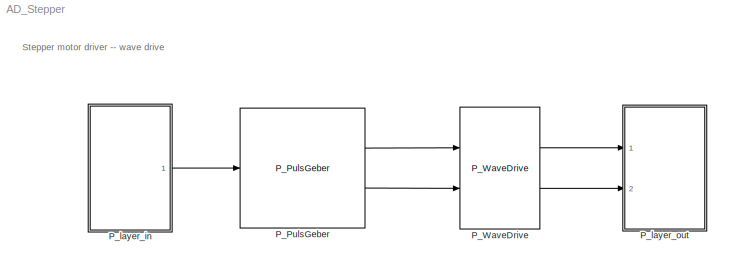
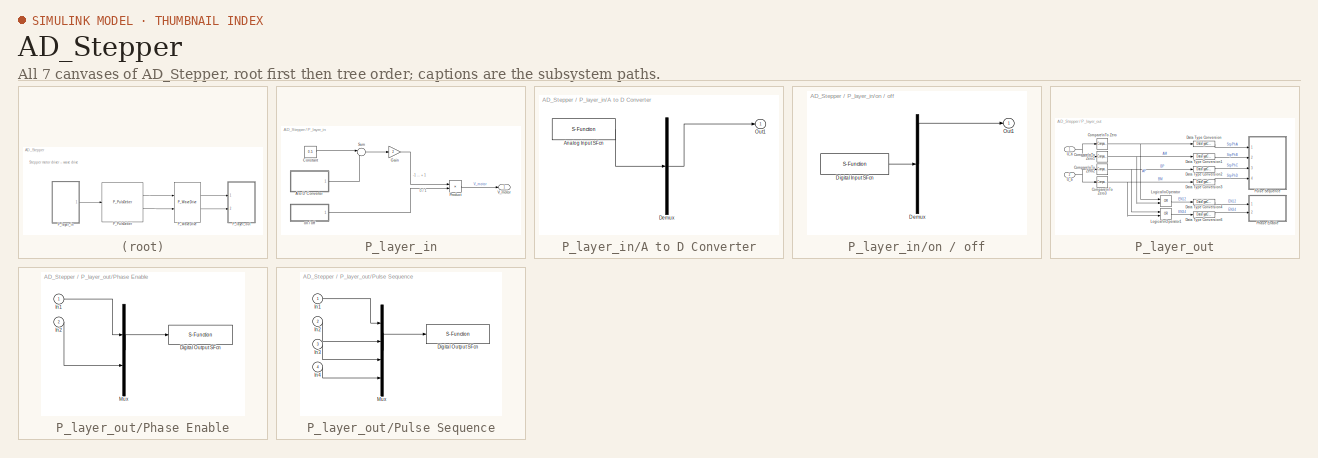
[diagram: thumbnail index - all 7 canvases of the model, root first then tree order]
MODEL AD_Stepper
KIND model
CONFIG PostLoadFcn = Ts = 0.01;      % model sample time\nTmax = 0.5;   % maximum time per \"tick\"
BLOCK [Reference] P_PulsGeber  REF=AD_Stepper_motor_lib/P_PulsGeber
  FunctionWithSeparateData = off
  Ports = [1, 2]
  RTWMemSecDataConstants = Inherit from model
  RTWMemSecDataInternal = Inherit from model
  RTWMemSecDataParameters = Inherit from model
  RTWMemSecFuncExecute = Inherit from model
  RTWMemSecFuncInitTerm = Inherit from model
  SID = 206
  ShowPortLabels = FromPortIcon
  SourceBlock = AD_Stepper_motor_lib/P_PulsGeber
  SourceType = SubSystem
  SystemSampleTime = Ts
BLOCK [Reference] P_WaveDrive  REF=AD_Stepper_motor_lib/P_WaveDrive
  FunctionWithSeparateData = off
  Ports = [2, 2]
  RTWMemSecDataConstants = Inherit from model
  RTWMemSecDataInternal = Inherit from model
  RTWMemSecDataParameters = Inherit from model
  RTWMemSecFuncExecute = Inherit from model
  RTWMemSecFuncInitTerm = Inherit from model
  SID = 205
  ShowPortLabels = FromPortIcon
  SourceBlock = AD_Stepper_motor_lib/P_WaveDrive
  SourceType = SubSystem
  SystemSampleTime = Ts
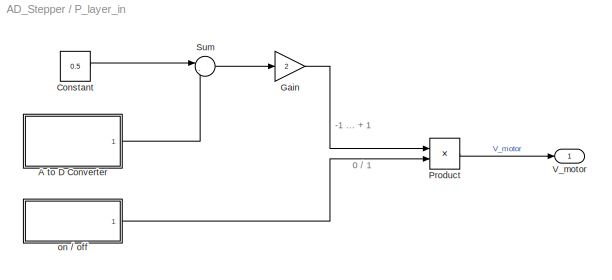
BLOCK [SubSystem] P_layer_in
  Ports = [0, 1]
  RequestExecContextInheritance = off
  SID = 58
  TreatAsAtomicUnit = on
BLOCK [SubSystem] P_layer_in/A to D Converter
  Ports = [0, 1]
  RequestExecContextInheritance = off
  SID = 163
  ShowPortLabels = none
  Tag = mcTarget_adc
BLOCK [S-Function] P_layer_in/A to D Converter/Analog Input SFcn
  EnableBusSupport = off
  FunctionName = adc_sfcn_9S12
  Parameters = bank-1, firstChannel, numChannels, use10bits-1, normalize, sampletime
  Ports = [0, 1]
  SFcnIsStateOwnerBlock = off
  SFunctionDeploymentMode = off
  SID = 163:166
  Tag = mcTarget_adc
BLOCK [Demux] P_layer_in/A to D Converter/Demux
  Outputs = 1
  Ports = [1, 1]
  SID = 163:167
BLOCK [Outport] P_layer_in/A to D Converter/Out1
  IconDisplay = Port number
  SID = 163:168
BLOCK [Constant] P_layer_in/Constant
  SID = 60
  Value = 0.5
BLOCK [Gain] P_layer_in/Gain
  Gain = 2
  OutDataTypeStr = Inherit: Inherit via internal rule
  ParamDataTypeStr = Inherit: Inherit via internal rule
  SID = 61
  SaturateOnIntegerOverflow = off
BLOCK [Product] P_layer_in/Product
  InputSameDT = off
  OutDataTypeStr = Inherit: Inherit via internal rule
  Ports = [2, 1]
  SID = 63
  SaturateOnIntegerOverflow = off
BLOCK [Sum] P_layer_in/Sum
  IconShape = round
  InputSameDT = off
  Inputs = |-+
  OutDataTypeStr = Inherit: Inherit via internal rule
  Ports = [2, 1]
  SID = 64
  SaturateOnIntegerOverflow = off
BLOCK [Outport] P_layer_in/V_motor
  IconDisplay = Port number
  SID = 65
BLOCK [SubSystem] P_layer_in/on // off
  Ports = [0, 1]
  RequestExecContextInheritance = off
  SID = 208
  ShowPortLabels = none
  Tag = mcTarget_digIn
BLOCK [Demux] P_layer_in/on // off/Demux
  Outputs = 1
  Ports = [1, 1]
  SID = 208:209
BLOCK [S-Function] P_layer_in/on // off/Digital Input SFcn
  EnableBusSupport = off
  FunctionName = digIn_sfcn_9S12
  Parameters = sampletime, port, pins
  Ports = [0, 1]
  SFcnIsStateOwnerBlock = off
  SFunctionDeploymentMode = off
  SID = 208:210
  Tag = mcTarget_digIn
BLOCK [Outport] P_layer_in/on // off/Out1
  IconDisplay = Port number
  SID = 208:211
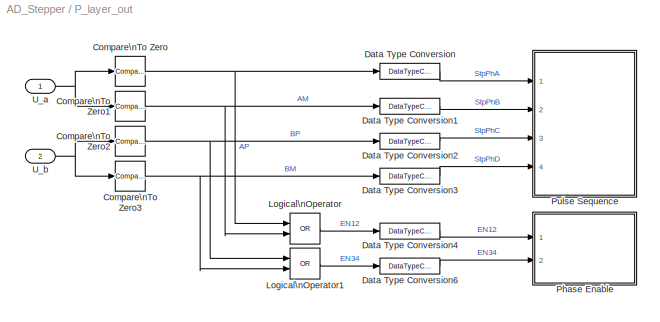
BLOCK [SubSystem] P_layer_out
  Ports = [2]
  RequestExecContextInheritance = off
  SID = 66
  SystemSampleTime = Ts
  TreatAsAtomicUnit = on
BLOCK [Reference] P_layer_out/Compare\nTo Zero  REF=simulink/Logic and Bit\nOperations/Compare\nTo Zero
  FunctionWithSeparateData = off
  LogicOutDataTypeMode = boolean
  Ports = [1, 1]
  RTWMemSecDataConstants = Inherit from model
  RTWMemSecDataInternal = Inherit from model
  RTWMemSecDataParameters = Inherit from model
  RTWMemSecFuncExecute = Inherit from model
  RTWMemSecFuncInitTerm = Inherit from model
  SID = 149
  ShowPortLabels = FromPortIcon
  SourceBlock = simulink/Logic and Bit\nOperations/Compare\nTo Zero
  SourceProductBaseCode = SL
  SourceProductName = Simulink
  SourceType = Compare To Zero
  SystemSampleTime = -1
  ZeroCross = off
  relop = >
BLOCK [Reference] P_layer_out/Compare\nTo Zero1  REF=simulink/Logic and Bit\nOperations/Compare\nTo Zero
  FunctionWithSeparateData = off
  LogicOutDataTypeMode = boolean
  Ports = [1, 1]
  RTWMemSecDataConstants = Inherit from model
  RTWMemSecDataInternal = Inherit from model
  RTWMemSecDataParameters = Inherit from model
  RTWMemSecFuncExecute = Inherit from model
  RTWMemSecFuncInitTerm = Inherit from model
  SID = 150
  ShowPortLabels = FromPortIcon
  SourceBlock = simulink/Logic and Bit\nOperations/Compare\nTo Zero
  SourceProductBaseCode = SL
  SourceProductName = Simulink
  SourceType = Compare To Zero
  SystemSampleTime = -1
  ZeroCross = off
  relop = <
BLOCK [Reference] P_layer_out/Compare\nTo Zero2  REF=simulink/Logic and Bit\nOperations/Compare\nTo Zero
  FunctionWithSeparateData = off
  LogicOutDataTypeMode = boolean
  Ports = [1, 1]
  RTWMemSecDataConstants = Inherit from model
  RTWMemSecDataInternal = Inherit from model
  RTWMemSecDataParameters = Inherit from model
  RTWMemSecFuncExecute = Inherit from model
  RTWMemSecFuncInitTerm = Inherit from model
  SID = 151
  ShowPortLabels = FromPortIcon
  SourceBlock = simulink/Logic and Bit\nOperations/Compare\nTo Zero
  SourceProductBaseCode = SL
  SourceProductName = Simulink
  SourceType = Compare To Zero
  SystemSampleTime = -1
  ZeroCross = off
  relop = >
BLOCK [Reference] P_layer_out/Compare\nTo Zero3  REF=simulink/Logic and Bit\nOperations/Compare\nTo Zero
  FunctionWithSeparateData = off
  LogicOutDataTypeMode = boolean
  Ports = [1, 1]
  RTWMemSecDataConstants = Inherit from model
  RTWMemSecDataInternal = Inherit from model
  RTWMemSecDataParameters = Inherit from model
  RTWMemSecFuncExecute = Inherit from model
  RTWMemSecFuncInitTerm = Inherit from model
  SID = 152
  ShowPortLabels = FromPortIcon
  SourceBlock = simulink/Logic and Bit\nOperations/Compare\nTo Zero
  SourceProductBaseCode = SL
  SourceProductName = Simulink
  SourceType = Compare To Zero
  SystemSampleTime = -1
  ZeroCross = off
  relop = <
BLOCK [DataTypeConversion] P_layer_out/Data Type Conversion
  OutDataTypeStr = double
  RndMeth = Floor
  SID = 73
  SaturateOnIntegerOverflow = off
BLOCK [DataTypeConversion] P_layer_out/Data Type Conversion1
  OutDataTypeStr = double
  RndMeth = Floor
  SID = 74
  SaturateOnIntegerOverflow = off
BLOCK [DataTypeConversion] P_layer_out/Data Type Conversion2
  OutDataTypeStr = double
  RndMeth = Floor
  SID = 75
  SaturateOnIntegerOverflow = off
BLOCK [DataTypeConversion] P_layer_out/Data Type Conversion3
  OutDataTypeStr = double
  RndMeth = Floor
  SID = 76
  SaturateOnIntegerOverflow = off
BLOCK [DataTypeConversion] P_layer_out/Data Type Conversion4
  OutDataTypeStr = double
  RndMeth = Floor
  SID = 77
  SaturateOnIntegerOverflow = off
BLOCK [DataTypeConversion] P_layer_out/Data Type Conversion6
  OutDataTypeStr = double
  RndMeth = Floor
  SID = 78
  SaturateOnIntegerOverflow = off
BLOCK [Logic] P_layer_out/Logical\nOperator
  AllPortsSameDT = off
  Operator = OR
  OutDataTypeStr = boolean
  Ports = [2, 1]
  SID = 153
BLOCK [Logic] P_layer_out/Logical\nOperator1
  AllPortsSameDT = off
  Operator = OR
  OutDataTypeStr = boolean
  Ports = [2, 1]
  SID = 154
BLOCK [SubSystem] P_layer_out/Phase Enable
  Ports = [2]
  RequestExecContextInheritance = off
  SID = 82
  ShowPortLabels = none
  Tag = mcTarget_digOut
BLOCK [S-Function] P_layer_out/Phase Enable/Digital Output SFcn
  EnableBusSupport = off
  FunctionName = digOut_sfcn_9S12
  Parameters = sampletime, port, pins, Von, Voff
  Ports = [1]
  SFcnIsStateOwnerBlock = off
  SFunctionDeploymentMode = off
  SID = 82:3
  Tag = mcTarget_digOut
BLOCK [Inport] P_layer_out/Phase Enable/In1
  IconDisplay = Port number
  SID = 82:1
BLOCK [Inport] P_layer_out/Phase Enable/In2
  IconDisplay = Port number
  Port = 2
  SID = 82:2
BLOCK [Mux] P_layer_out/Phase Enable/Mux
  DisplayOption = bar
  Inputs = 2
  Ports = [2, 1]
  SID = 82:4
BLOCK [SubSystem] P_layer_out/Pulse Sequence
  Ports = [4]
  RequestExecContextInheritance = off
  SID = 84
  ShowPortLabels = none
  Tag = mcTarget_digOut
BLOCK [S-Function] P_layer_out/Pulse Sequence/Digital Output SFcn
  EnableBusSupport = off
  FunctionName = digOut_sfcn_9S12
  Parameters = sampletime, port, pins, Von, Voff
  Ports = [1]
  SFcnIsStateOwnerBlock = off
  SFunctionDeploymentMode = off
  SID = 84:5
  Tag = mcTarget_digOut
BLOCK [Inport] P_layer_out/Pulse Sequence/In1
  IconDisplay = Port number
  SID = 84:1
BLOCK [Inport] P_layer_out/Pulse Sequence/In2
  IconDisplay = Port number
  Port = 2
  SID = 84:2
BLOCK [Inport] P_layer_out/Pulse Sequence/In3
  IconDisplay = Port number
  Port = 3
  SID = 84:3
BLOCK [Inport] P_layer_out/Pulse Sequence/In4
  IconDisplay = Port number
  Port = 4
  SID = 84:4
BLOCK [Mux] P_layer_out/Pulse Sequence/Mux
  DisplayOption = bar
  Ports = [4, 1]
  SID = 84:6
BLOCK [Inport] P_layer_out/U_a
  IconDisplay = Port number
  SID = 147
BLOCK [Inport] P_layer_out/U_b
  IconDisplay = Port number
  Port = 2
  SID = 148
ANNOTATION (root): Stepper motor driver -- wave drive
ANNOTATION P_layer_in: -1 ... + 1
ANNOTATION P_layer_in: 0 / 1
LINE P_PulsGeber:1 -> P_WaveDrive:1
LINE P_PulsGeber:2 -> P_WaveDrive:2
LINE P_WaveDrive:1 -> P_layer_out:1
LINE P_WaveDrive:2 -> P_layer_out:2
LINE P_layer_in/A to D Converter/Analog Input SFcn:1 -> P_layer_in/A to D Converter/Demux:1
LINE P_layer_in/A to D Converter/Demux:1 -> P_layer_in/A to D Converter/Out1:1
LINE P_layer_in/A to D Converter:1 -> P_layer_in/Sum:2
LINE P_layer_in/Constant:1 -> P_layer_in/Sum:1
LINE P_layer_in/Gain:1 -> P_layer_in/Product:1
LINE P_layer_in/Product:1 -> P_layer_in/V_motor:1
LINE P_layer_in/Sum:1 -> P_layer_in/Gain:1
LINE P_layer_in/on // off/Demux:1 -> P_layer_in/on // off/Out1:1
LINE P_layer_in/on // off/Digital Input SFcn:1 -> P_layer_in/on // off/Demux:1
LINE P_layer_in/on // off:1 -> P_layer_in/Product:2
LINE P_layer_in:1 -> P_PulsGeber:1
NET P_layer_out/Compare\nTo Zero1:1 -> P_layer_out/Data Type Conversion1:1, P_layer_out/Logical\nOperator:2
NET P_layer_out/Compare\nTo Zero2:1 -> P_layer_out/Data Type Conversion2:1, P_layer_out/Logical\nOperator1:1
NET P_layer_out/Compare\nTo Zero3:1 -> P_layer_out/Data Type Conversion3:1, P_layer_out/Logical\nOperator1:2
NET P_layer_out/Compare\nTo Zero:1 -> P_layer_out/Data Type Conversion:1, P_layer_out/Logical\nOperator:1
LINE P_layer_out/Data Type Conversion1:1 -> P_layer_out/Pulse Sequence:2
LINE P_layer_out/Data Type Conversion2:1 -> P_layer_out/Pulse Sequence:3
LINE P_layer_out/Data Type Conversion3:1 -> P_layer_out/Pulse Sequence:4
LINE P_layer_out/Data Type Conversion4:1 -> P_layer_out/Phase Enable:1
LINE P_layer_out/Data Type Conversion6:1 -> P_layer_out/Phase Enable:2
LINE P_layer_out/Data Type Conversion:1 -> P_layer_out/Pulse Sequence:1
LINE P_layer_out/Logical\nOperator1:1 -> P_layer_out/Data Type Conversion6:1
LINE P_layer_out/Logical\nOperator:1 -> P_layer_out/Data Type Conversion4:1
LINE P_layer_out/Phase Enable/In1:1 -> P_layer_out/Phase Enable/Mux:1
LINE P_layer_out/Phase Enable/In2:1 -> P_layer_out/Phase Enable/Mux:2
LINE P_layer_out/Phase Enable/Mux:1 -> P_layer_out/Phase Enable/Digital Output SFcn:1
LINE P_layer_out/Pulse Sequence/In1:1 -> P_layer_out/Pulse Sequence/Mux:1
LINE P_layer_out/Pulse Sequence/In2:1 -> P_layer_out/Pulse Sequence/Mux:2
LINE P_layer_out/Pulse Sequence/In3:1 -> P_layer_out/Pulse Sequence/Mux:3
LINE P_layer_out/Pulse Sequence/In4:1 -> P_layer_out/Pulse Sequence/Mux:4
LINE P_layer_out/Pulse Sequence/Mux:1 -> P_layer_out/Pulse Sequence/Digital Output SFcn:1
NET P_layer_out/U_a:1 -> P_layer_out/Compare\nTo Zero1:1, P_layer_out/Compare\nTo Zero:1
NET P_layer_out/U_b:1 -> P_layer_out/Compare\nTo Zero2:1, P_layer_out/Compare\nTo Zero3:1
note: NET lines group one-source signal fan-out (src -> all destinations, sorted); 1:1 wires keep LINE
